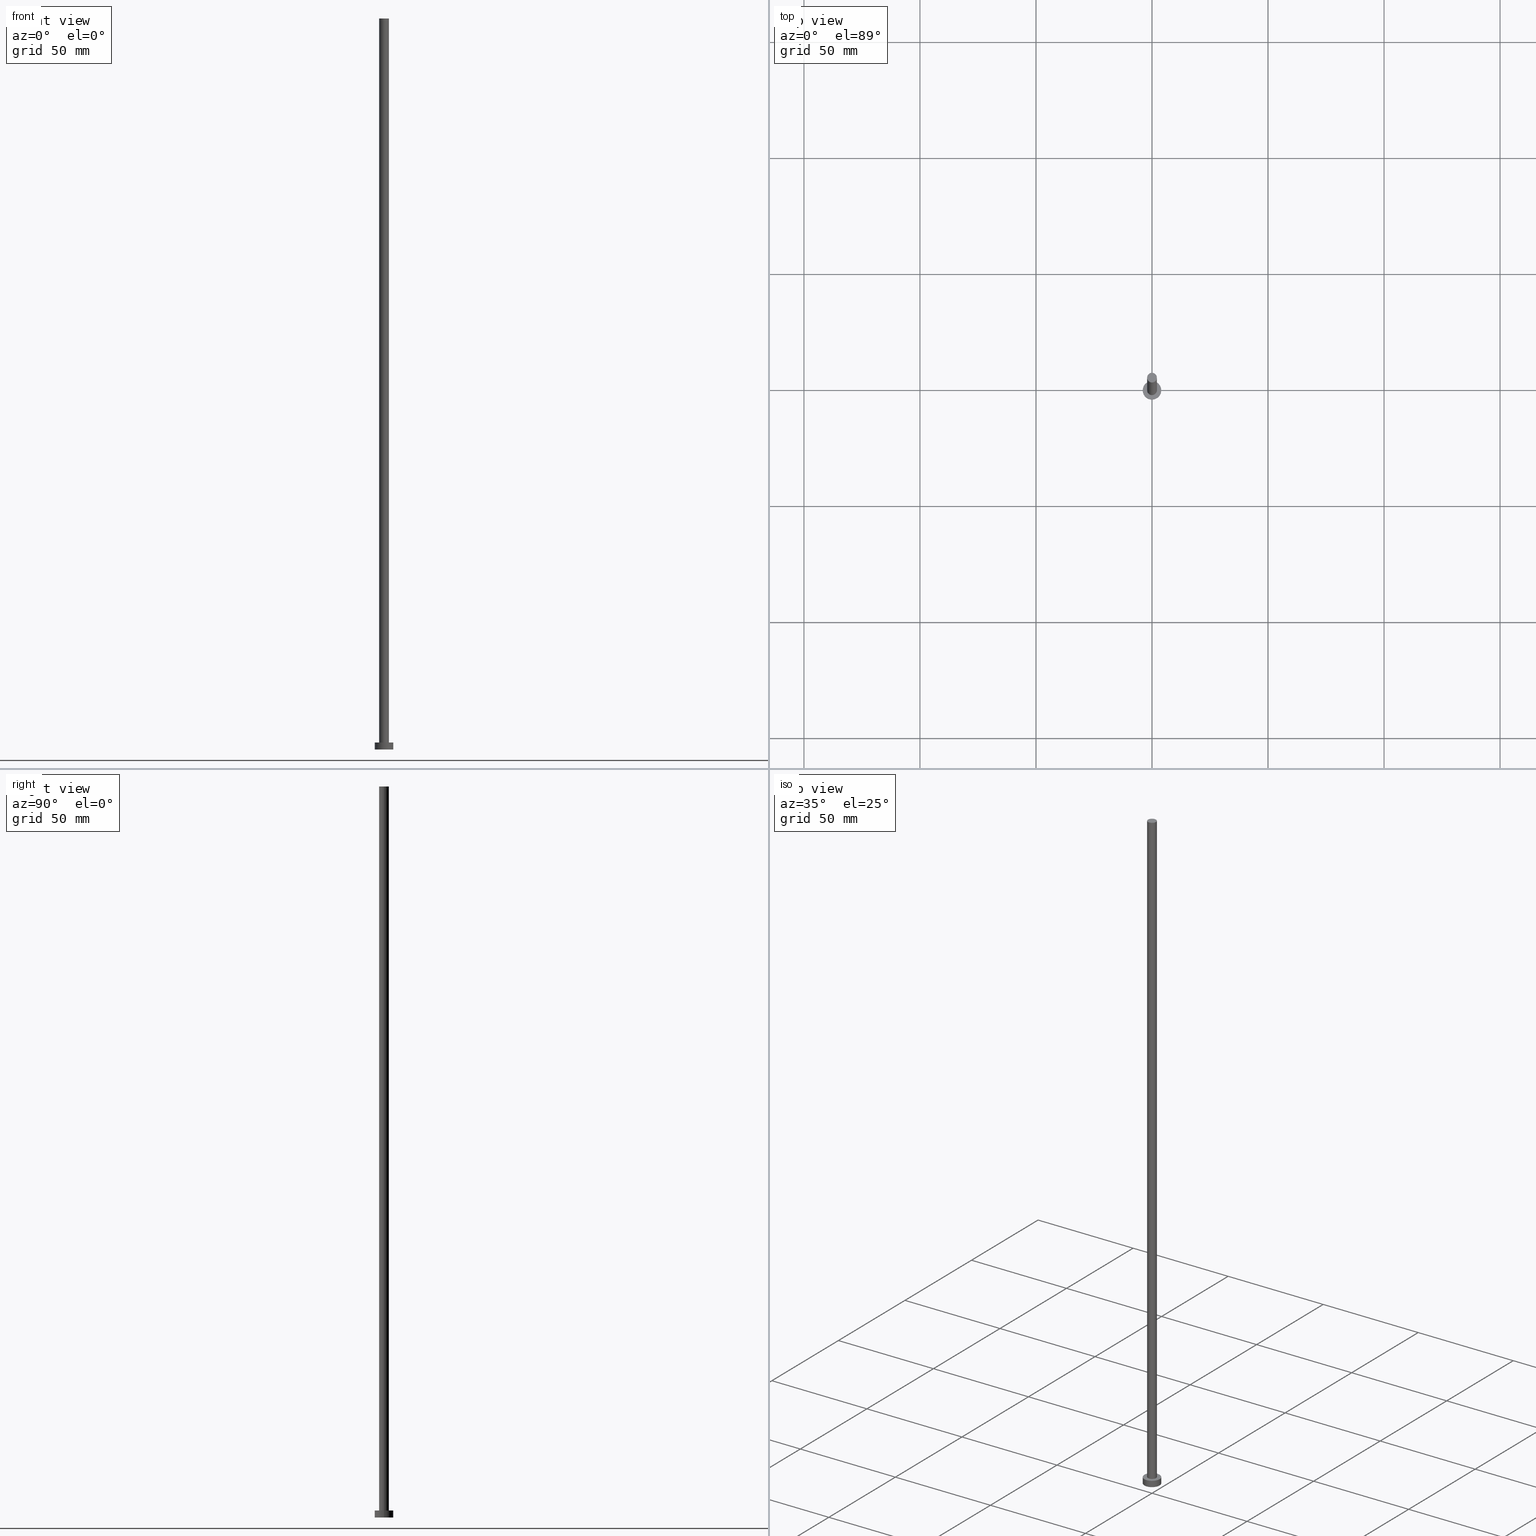
[diagram: canonical four-view strip — front | top / right | iso, engineering-drawing reading convention]
A machine part, canonical four-view strip (front | top / right | iso — engineering-drawing reading convention). The complete STEP part file that produces these views, byte-faithful:
ISO-10303-21;
HEADER;
FILE_DESCRIPTION (( 'STEP AP203' ),
    '1' );
FILE_NAME ('b4a2.STEP',
    '2023-02-13T13:55:49',
    ( '' ),
    ( '' ),
    'SwSTEP 2.0',
    'SolidWorks 2019',
    '' );
FILE_SCHEMA (( 'CONFIG_CONTROL_DESIGN' ));
ENDSEC;

DATA;
#1 = ORIENTED_EDGE ( 'NONE', *, *, #47, .T. ) ;
#2 = APPROVAL_STATUS ( 'not_yet_approved' ) ;
#3 = CARTESIAN_POINT ( 'NONE',  ( 4.000000000000000000, 4.898587196589412829E-16, 0.000000000000000000 ) ) ;
#4 = DIRECTION ( 'NONE',  ( -1.000000000000000000, 0.000000000000000000, 0.000000000000000000 ) ) ;
#5 = CC_DESIGN_APPROVAL ( #71, ( #108 ) ) ;
#6 = CARTESIAN_POINT ( 'NONE',  ( -4.000000000000000000, 0.000000000000000000, 0.000000000000000000 ) ) ;
#7 = CARTESIAN_POINT ( 'NONE',  ( 0.000000000000000000, 0.000000000000000000, 3.000000000000000000 ) ) ;
#8 = AXIS2_PLACEMENT_3D ( 'NONE', #136, #13, #94 ) ;
#9 = CARTESIAN_POINT ( 'NONE',  ( 0.000000000000000000, 0.000000000000000000, 3.000000000000000000 ) ) ;
#10 = AXIS2_PLACEMENT_3D ( 'NONE', #218, #33, #116 ) ;
#11 = EDGE_LOOP ( 'NONE', ( #242, #222, #217, #164 ) ) ;
#12 = PERSON_AND_ORGANIZATION ( #29, #41 ) ;
#13 = DIRECTION ( 'NONE',  ( 0.000000000000000000, 0.000000000000000000, 1.000000000000000000 ) ) ;
#14 = EDGE_CURVE ( 'NONE', #233, #93, #42, .T. ) ;
#15 = AXIS2_PLACEMENT_3D ( 'NONE', #102, #146, #43 ) ;
#16 = PERSON_AND_ORGANIZATION ( #29, #41 ) ;
#17 = EDGE_CURVE ( 'NONE', #249, #107, #36, .T. ) ;
#18 = LOCAL_TIME ( 14, 55, 49.00000000000000000, #243 ) ;
#19 = DATE_TIME_ROLE ( 'classification_date' ) ;
#20 = DIRECTION ( 'NONE',  ( 1.000000000000000000, 0.000000000000000000, 0.000000000000000000 ) ) ;
#21 = COORDINATED_UNIVERSAL_TIME_OFFSET ( 1, 0, .AHEAD. ) ;
#22 = ORIENTED_EDGE ( 'NONE', *, *, #81, .T. ) ;
#23 = APPROVAL ( #196, 'NEUR�EN�' ) ;
#24 = VECTOR ( 'NONE', #209, 1000.000000000000000 ) ;
#25 = DIRECTION ( 'NONE',  ( 1.000000000000000000, 0.000000000000000000, 0.000000000000000000 ) ) ;
#26 = EDGE_CURVE ( 'NONE', #86, #44, #180, .T. ) ;
#27 = APPROVAL_PERSON_ORGANIZATION ( #12, #71, #201 ) ;
#28 = CC_DESIGN_PERSON_AND_ORGANIZATION_ASSIGNMENT ( #82, #181, ( #110 ) ) ;
#29 = PERSON ( 'NEUR�EN�', 'NEUR�EN�', 'NEUR�EN�', ('NEUR�EN�'), ('NEUR�EN�'), ('NEUR�EN�') ) ;
#30 = AXIS2_PLACEMENT_3D ( 'NONE', #203, #99, #20 ) ;
#31 = AXIS2_PLACEMENT_3D ( 'NONE', #64, #68, #168 ) ;
#32 = PERSON_AND_ORGANIZATION ( #29, #41 ) ;
#33 = DIRECTION ( 'NONE',  ( -0.000000000000000000, -0.000000000000000000, -1.000000000000000000 ) ) ;
#34 = COORDINATED_UNIVERSAL_TIME_OFFSET ( 1, 0, .AHEAD. ) ;
#35 = DIRECTION ( 'NONE',  ( 1.000000000000000000, 0.000000000000000000, 0.000000000000000000 ) ) ;
#36 = CIRCLE ( 'NONE', #31, 4.000000000000000000 ) ;
#37 = CC_DESIGN_DATE_AND_TIME_ASSIGNMENT ( #56, #120, ( #108 ) ) ;
#38 = PERSON_AND_ORGANIZATION ( #29, #41 ) ;
#39 = ORIENTED_EDGE ( 'NONE', *, *, #114, .F. ) ;
#40 = ORIENTED_EDGE ( 'NONE', *, *, #156, .T. ) ;
#41 = ORGANIZATION ( 'NEUR�EN�', 'NEUR�EN�', '' ) ;
#42 = LINE ( 'NONE', #66, #45 ) ;
#43 = DIRECTION ( 'NONE',  ( 1.000000000000000000, 0.000000000000000000, 0.000000000000000000 ) ) ;
#44 = VERTEX_POINT ( 'NONE', #3 ) ;
#45 = VECTOR ( 'NONE', #69, 1000.000000000000000 ) ;
#46 = CARTESIAN_POINT ( 'NONE',  ( 0.000000000000000000, 0.000000000000000000, 3.000000000000000000 ) ) ;
#47 = EDGE_CURVE ( 'NONE', #107, #249, #206, .T. ) ;
#48 = CALENDAR_DATE ( 2023, 13, 2 ) ;
#49 = CARTESIAN_POINT ( 'NONE',  ( -2.100000000000000089, 0.000000000000000000, 3.000000000000000000 ) ) ;
#50 = APPLICATION_CONTEXT ( 'configuration controlled 3d designs of mechanical parts and assemblies' ) ;
#51 = DIRECTION ( 'NONE',  ( 0.000000000000000000, 0.000000000000000000, 1.000000000000000000 ) ) ;
#52 = CC_DESIGN_APPROVAL ( #23, ( #200 ) ) ;
#53 = LINE ( 'NONE', #73, #140 ) ;
#54 = CALENDAR_DATE ( 2023, 13, 2 ) ;
#55 = DIRECTION ( 'NONE',  ( -0.000000000000000000, -0.000000000000000000, -1.000000000000000000 ) ) ;
#56 = DATE_AND_TIME ( #54, #123 ) ;
#57 = AXIS2_PLACEMENT_3D ( 'NONE', #7, #171, #220 ) ;
#58 = ADVANCED_FACE ( 'NONE', ( #182 ), #244, .T. ) ;
#59 = DIRECTION ( 'NONE',  ( -0.000000000000000000, -0.000000000000000000, -1.000000000000000000 ) ) ;
#60 = APPROVAL_ROLE ( '' ) ;
#61 = DIRECTION ( 'NONE',  ( 0.000000000000000000, 0.000000000000000000, 1.000000000000000000 ) ) ;
#62 = ORIENTED_EDGE ( 'NONE', *, *, #246, .T. ) ;
#63 = CALENDAR_DATE ( 2023, 13, 2 ) ;
#64 = CARTESIAN_POINT ( 'NONE',  ( 0.000000000000000000, 0.000000000000000000, 3.000000000000000000 ) ) ;
#65 = APPROVAL_PERSON_ORGANIZATION ( #16, #23, #97 ) ;
#66 = CARTESIAN_POINT ( 'NONE',  ( -2.100000000000000089, 0.000000000000000000, 315.0000000000000000 ) ) ;
#67 = CC_DESIGN_PERSON_AND_ORGANIZATION_ASSIGNMENT ( #150, #96, ( #183 ) ) ;
#68 = DIRECTION ( 'NONE',  ( 0.000000000000000000, 0.000000000000000000, 1.000000000000000000 ) ) ;
#69 = DIRECTION ( 'NONE',  ( -0.000000000000000000, -0.000000000000000000, -1.000000000000000000 ) ) ;
#70 = AXIS2_PLACEMENT_3D ( 'NONE', #139, #234, #35 ) ;
#71 = APPROVAL ( #80, 'NEUR�EN�' ) ;
#72 = APPLICATION_CONTEXT ( 'configuration controlled 3d designs of mechanical parts and assemblies' ) ;
#73 = CARTESIAN_POINT ( 'NONE',  ( -4.000000000000000000, 0.000000000000000000, 3.000000000000000000 ) ) ;
#74 = FACE_BOUND ( 'NONE', #172, .T. ) ;
#75 = CALENDAR_DATE ( 2023, 13, 2 ) ;
#76 = CYLINDRICAL_SURFACE ( 'NONE', #129, 4.000000000000000000 ) ;
#77 = LOCAL_TIME ( 14, 55, 49.00000000000000000, #149 ) ;
#78 = CIRCLE ( 'NONE', #70, 4.000000000000000000 ) ;
#79 = CLOSED_SHELL ( 'NONE', ( #232, #212, #130, #186, #85, #58, #166 ) ) ;
#80 = APPROVAL_STATUS ( 'not_yet_approved' ) ;
#81 = EDGE_CURVE ( 'NONE', #121, #100, #84, .T. ) ;
#82 = PERSON_AND_ORGANIZATION ( #29, #41 ) ;
#83 = ORIENTED_EDGE ( 'NONE', *, *, #118, .F. ) ;
#84 = LINE ( 'NONE', #127, #24 ) ;
#85 = ADVANCED_FACE ( 'NONE', ( #106 ), #147, .F. ) ;
#86 = VERTEX_POINT ( 'NONE', #6 ) ;
#87 = EDGE_CURVE ( 'NONE', #107, #44, #111, .T. ) ;
#88 = CYLINDRICAL_SURFACE ( 'NONE', #57, 4.000000000000000000 ) ;
#89 = AXIS2_PLACEMENT_3D ( 'NONE', #191, #192, #90 ) ;
#90 = DIRECTION ( 'NONE',  ( 1.000000000000000000, 0.000000000000000000, 0.000000000000000000 ) ) ;
#91 = CC_DESIGN_SECURITY_CLASSIFICATION ( #110, ( #200 ) ) ;
#92 = ORIENTED_EDGE ( 'NONE', *, *, #26, .F. ) ;
#93 = VERTEX_POINT ( 'NONE', #49 ) ;
#94 = DIRECTION ( 'NONE',  ( 1.000000000000000000, 0.000000000000000000, -0.000000000000000000 ) ) ;
#95 = LOCAL_TIME ( 14, 55, 49.00000000000000000, #155 ) ;
#96 = PERSON_AND_ORGANIZATION_ROLE ( 'design_owner' ) ;
#97 = APPROVAL_ROLE ( '' ) ;
#98 =( LENGTH_UNIT ( ) NAMED_UNIT ( * ) SI_UNIT ( .MILLI., .METRE. ) );
#99 = DIRECTION ( 'NONE',  ( 0.000000000000000000, 0.000000000000000000, 1.000000000000000000 ) ) ;
#100 = VERTEX_POINT ( 'NONE', #211 ) ;
#101 = FACE_OUTER_BOUND ( 'NONE', #115, .T. ) ;
#102 = CARTESIAN_POINT ( 'NONE',  ( 0.000000000000000000, 0.000000000000000000, 3.000000000000000000 ) ) ;
#103 = CIRCLE ( 'NONE', #135, 2.100000000000000089 ) ;
#104 = PERSON_AND_ORGANIZATION ( #29, #41 ) ;
#105 = DIRECTION ( 'NONE',  ( -0.000000000000000000, -0.000000000000000000, -1.000000000000000000 ) ) ;
#106 = FACE_OUTER_BOUND ( 'NONE', #226, .T. ) ;
#107 = VERTEX_POINT ( 'NONE', #113 ) ;
#108 = PRODUCT_DEFINITION ( 'NEZN�M�', '', #200, #165 ) ;
#109 = CARTESIAN_POINT ( 'NONE',  ( 2.100000000000000089, 2.571758278209441957E-16, 315.0000000000000000 ) ) ;
#110 = SECURITY_CLASSIFICATION ( '', '', #184 ) ;
#111 = LINE ( 'NONE', #169, #167 ) ;
#112 = CIRCLE ( 'NONE', #30, 2.100000000000000089 ) ;
#113 = CARTESIAN_POINT ( 'NONE',  ( 4.000000000000000000, 4.898587196589412829E-16, 3.000000000000000000 ) ) ;
#114 = EDGE_CURVE ( 'NONE', #233, #121, #214, .T. ) ;
#115 = EDGE_LOOP ( 'NONE', ( #245, #40 ) ) ;
#116 = DIRECTION ( 'NONE',  ( -1.000000000000000000, 0.000000000000000000, 0.000000000000000000 ) ) ;
#117 = CARTESIAN_POINT ( 'NONE',  ( 0.000000000000000000, 0.000000000000000000, 0.000000000000000000 ) ) ;
#118 = EDGE_CURVE ( 'NONE', #93, #100, #103, .T. ) ;
#119 = LOCAL_TIME ( 14, 55, 49.00000000000000000, #21 ) ;
#120 = DATE_TIME_ROLE ( 'creation_date' ) ;
#121 = VERTEX_POINT ( 'NONE', #109 ) ;
#122 = ORIENTED_EDGE ( 'NONE', *, *, #26, .T. ) ;
#123 = LOCAL_TIME ( 14, 55, 49.00000000000000000, #34 ) ;
#124 =( GEOMETRIC_REPRESENTATION_CONTEXT ( 3 ) GLOBAL_UNCERTAINTY_ASSIGNED_CONTEXT ( ( #224 ) ) GLOBAL_UNIT_ASSIGNED_CONTEXT ( ( #98, #239, #255 ) ) REPRESENTATION_CONTEXT ( 'NONE', 'WORKASPACE' ) );
#125 = PERSON_AND_ORGANIZATION_ROLE ( 'creator' ) ;
#126 = CARTESIAN_POINT ( 'NONE',  ( 0.000000000000000000, 0.000000000000000000, 315.0000000000000000 ) ) ;
#127 = CARTESIAN_POINT ( 'NONE',  ( 2.100000000000000089, 2.571758278209441957E-16, 315.0000000000000000 ) ) ;
#128 = CARTESIAN_POINT ( 'NONE',  ( 0.000000000000000000, 0.000000000000000000, 0.000000000000000000 ) ) ;
#129 = AXIS2_PLACEMENT_3D ( 'NONE', #9, #55, #250 ) ;
#130 = ADVANCED_FACE ( 'NONE', ( #188 ), #88, .T. ) ;
#131 = AXIS2_PLACEMENT_3D ( 'NONE', #128, #210, #187 ) ;
#132 = FACE_OUTER_BOUND ( 'NONE', #174, .T. ) ;
#133 = CC_DESIGN_PERSON_AND_ORGANIZATION_ASSIGNMENT ( #178, #125, ( #200 ) ) ;
#134 = CARTESIAN_POINT ( 'NONE',  ( 0.000000000000000000, 0.000000000000000000, 3.000000000000000000 ) ) ;
#135 = AXIS2_PLACEMENT_3D ( 'NONE', #46, #51, #25 ) ;
#136 = CARTESIAN_POINT ( 'NONE',  ( 0.000000000000000000, 0.000000000000000000, 315.0000000000000000 ) ) ;
#137 = APPROVAL_DATE_TIME ( #215, #71 ) ;
#138 = CARTESIAN_POINT ( 'NONE',  ( -4.000000000000000000, 0.000000000000000000, 3.000000000000000000 ) ) ;
#139 = CARTESIAN_POINT ( 'NONE',  ( 0.000000000000000000, 0.000000000000000000, 0.000000000000000000 ) ) ;
#140 = VECTOR ( 'NONE', #59, 1000.000000000000000 ) ;
#141 = DIRECTION ( 'NONE',  ( 1.000000000000000000, 0.000000000000000000, 0.000000000000000000 ) ) ;
#142 = ADVANCED_BREP_SHAPE_REPRESENTATION ( 'b4a2', ( #227, #190 ), #124 ) ;
#143 = DATE_AND_TIME ( #63, #18 ) ;
#144 = EDGE_LOOP ( 'NONE', ( #247, #39, #228, #161 ) ) ;
#145 = SHAPE_DEFINITION_REPRESENTATION ( #198, #142 ) ;
#146 = DIRECTION ( 'NONE',  ( 0.000000000000000000, 0.000000000000000000, 1.000000000000000000 ) ) ;
#147 = PLANE ( 'NONE',  #131 ) ;
#148 = ORIENTED_EDGE ( 'NONE', *, *, #246, .F. ) ;
#149 = COORDINATED_UNIVERSAL_TIME_OFFSET ( 1, 0, .AHEAD. ) ;
#150 = PERSON_AND_ORGANIZATION ( #29, #41 ) ;
#151 = ORIENTED_EDGE ( 'NONE', *, *, #208, .F. ) ;
#152 = DIRECTION ( 'NONE',  ( 1.000000000000000000, 0.000000000000000000, -0.000000000000000000 ) ) ;
#153 = ORIENTED_EDGE ( 'NONE', *, *, #14, .F. ) ;
#154 = DIRECTION ( 'NONE',  ( 0.000000000000000000, 0.000000000000000000, 1.000000000000000000 ) ) ;
#155 = COORDINATED_UNIVERSAL_TIME_OFFSET ( 1, 0, .AHEAD. ) ;
#156 = EDGE_CURVE ( 'NONE', #121, #233, #112, .T. ) ;
#157 = MECHANICAL_CONTEXT ( 'NONE', #50, 'mechanical' ) ;
#158 = FACE_OUTER_BOUND ( 'NONE', #205, .T. ) ;
#159 = DIRECTION ( 'NONE',  ( 1.000000000000000000, 0.000000000000000000, 0.000000000000000000 ) ) ;
#160 = CALENDAR_DATE ( 2023, 13, 2 ) ;
#161 = ORIENTED_EDGE ( 'NONE', *, *, #118, .T. ) ;
#162 = ORIENTED_EDGE ( 'NONE', *, *, #156, .F. ) ;
#163 = PLANE ( 'NONE',  #8 ) ;
#164 = ORIENTED_EDGE ( 'NONE', *, *, #229, .F. ) ;
#165 = DESIGN_CONTEXT ( 'detailed design', #72, 'design' ) ;
#166 = ADVANCED_FACE ( 'NONE', ( #101 ), #163, .T. ) ;
#167 = VECTOR ( 'NONE', #230, 1000.000000000000000 ) ;
#168 = DIRECTION ( 'NONE',  ( 1.000000000000000000, 0.000000000000000000, 0.000000000000000000 ) ) ;
#169 = CARTESIAN_POINT ( 'NONE',  ( 4.000000000000000000, 4.898587196589412829E-16, 3.000000000000000000 ) ) ;
#170 = CIRCLE ( 'NONE', #195, 2.100000000000000089 ) ;
#171 = DIRECTION ( 'NONE',  ( -0.000000000000000000, -0.000000000000000000, -1.000000000000000000 ) ) ;
#172 = EDGE_LOOP ( 'NONE', ( #83, #148 ) ) ;
#173 = AXIS2_PLACEMENT_3D ( 'NONE', #126, #105, #4 ) ;
#174 = EDGE_LOOP ( 'NONE', ( #162, #22, #62, #153 ) ) ;
#175 = PLANE ( 'NONE',  #237 ) ;
#176 = APPLICATION_PROTOCOL_DEFINITION ( 'international standard', 'config_control_design', 1994, #72 ) ;
#177 = CC_DESIGN_PERSON_AND_ORGANIZATION_ASSIGNMENT ( #32, #235, ( #108 ) ) ;
#178 = PERSON_AND_ORGANIZATION ( #29, #41 ) ;
#179 = EDGE_LOOP ( 'NONE', ( #185, #251, #225, #122 ) ) ;
#180 = CIRCLE ( 'NONE', #238, 4.000000000000000000 ) ;
#181 = PERSON_AND_ORGANIZATION_ROLE ( 'classification_officer' ) ;
#182 = FACE_OUTER_BOUND ( 'NONE', #144, .T. ) ;
#183 = PRODUCT ( 'b4a2', 'b4a2', '', ( #157 ) ) ;
#184 = SECURITY_CLASSIFICATION_LEVEL ( 'unclassified' ) ;
#185 = ORIENTED_EDGE ( 'NONE', *, *, #87, .F. ) ;
#186 = ADVANCED_FACE ( 'NONE', ( #74, #158 ), #175, .T. ) ;
#187 = DIRECTION ( 'NONE',  ( 1.000000000000000000, 0.000000000000000000, -0.000000000000000000 ) ) ;
#188 = FACE_OUTER_BOUND ( 'NONE', #179, .T. ) ;
#189 = DATE_AND_TIME ( #48, #77 ) ;
#190 = AXIS2_PLACEMENT_3D ( 'NONE', #117, #199, #159 ) ;
#191 = CARTESIAN_POINT ( 'NONE',  ( 0.000000000000000000, 0.000000000000000000, 315.0000000000000000 ) ) ;
#192 = DIRECTION ( 'NONE',  ( 0.000000000000000000, 0.000000000000000000, 1.000000000000000000 ) ) ;
#193 = PRODUCT_RELATED_PRODUCT_CATEGORY ( 'detail', '', ( #183 ) ) ;
#194 = FACE_OUTER_BOUND ( 'NONE', #11, .T. ) ;
#195 = AXIS2_PLACEMENT_3D ( 'NONE', #219, #254, #141 ) ;
#196 = APPROVAL_STATUS ( 'not_yet_approved' ) ;
#197 = CARTESIAN_POINT ( 'NONE',  ( -2.100000000000000089, 0.000000000000000000, 315.0000000000000000 ) ) ;
#198 = PRODUCT_DEFINITION_SHAPE ( 'NONE', 'NONE',  #108 ) ;
#199 = DIRECTION ( 'NONE',  ( 0.000000000000000000, 0.000000000000000000, 1.000000000000000000 ) ) ;
#200 = PRODUCT_DEFINITION_FORMATION_WITH_SPECIFIED_SOURCE ( 'LIBOVOLN�', '', #183, .NOT_KNOWN. ) ;
#201 = APPROVAL_ROLE ( '' ) ;
#202 = APPLICATION_PROTOCOL_DEFINITION ( 'international standard', 'config_control_design', 1994, #50 ) ;
#203 = CARTESIAN_POINT ( 'NONE',  ( 0.000000000000000000, 0.000000000000000000, 315.0000000000000000 ) ) ;
#204 = PERSON_AND_ORGANIZATION_ROLE ( 'design_supplier' ) ;
#205 = EDGE_LOOP ( 'NONE', ( #223, #1 ) ) ;
#206 = CIRCLE ( 'NONE', #15, 4.000000000000000000 ) ;
#207 = DIRECTION ( 'NONE',  ( 1.000000000000000000, 0.000000000000000000, 0.000000000000000000 ) ) ;
#208 = EDGE_CURVE ( 'NONE', #44, #86, #78, .T. ) ;
#209 = DIRECTION ( 'NONE',  ( -0.000000000000000000, -0.000000000000000000, -1.000000000000000000 ) ) ;
#210 = DIRECTION ( 'NONE',  ( 0.000000000000000000, 0.000000000000000000, 1.000000000000000000 ) ) ;
#211 = CARTESIAN_POINT ( 'NONE',  ( 2.100000000000000089, 2.571758278209441957E-16, 3.000000000000000000 ) ) ;
#212 = ADVANCED_FACE ( 'NONE', ( #194 ), #76, .T. ) ;
#213 = CYLINDRICAL_SURFACE ( 'NONE', #10, 2.100000000000000089 ) ;
#214 = CIRCLE ( 'NONE', #89, 2.100000000000000089 ) ;
#215 = DATE_AND_TIME ( #75, #95 ) ;
#216 = APPROVAL ( #2, 'NEUR�EN�' ) ;
#217 = ORIENTED_EDGE ( 'NONE', *, *, #208, .T. ) ;
#218 = CARTESIAN_POINT ( 'NONE',  ( 0.000000000000000000, 0.000000000000000000, 315.0000000000000000 ) ) ;
#219 = CARTESIAN_POINT ( 'NONE',  ( 0.000000000000000000, 0.000000000000000000, 3.000000000000000000 ) ) ;
#220 = DIRECTION ( 'NONE',  ( -1.000000000000000000, 0.000000000000000000, 0.000000000000000000 ) ) ;
#221 = APPROVAL_DATE_TIME ( #143, #216 ) ;
#222 = ORIENTED_EDGE ( 'NONE', *, *, #87, .T. ) ;
#223 = ORIENTED_EDGE ( 'NONE', *, *, #17, .T. ) ;
#224 = UNCERTAINTY_MEASURE_WITH_UNIT (LENGTH_MEASURE( 1.000000000000000082E-05 ), #98, 'distance_accuracy_value', 'NONE');
#225 = ORIENTED_EDGE ( 'NONE', *, *, #229, .T. ) ;
#226 = EDGE_LOOP ( 'NONE', ( #92, #151 ) ) ;
#227 = MANIFOLD_SOLID_BREP ( 'P�idat vysunut�m3', #79 ) ;
#228 = ORIENTED_EDGE ( 'NONE', *, *, #14, .T. ) ;
#229 = EDGE_CURVE ( 'NONE', #249, #86, #53, .T. ) ;
#230 = DIRECTION ( 'NONE',  ( -0.000000000000000000, -0.000000000000000000, -1.000000000000000000 ) ) ;
#231 = CC_DESIGN_APPROVAL ( #216, ( #110 ) ) ;
#232 = ADVANCED_FACE ( 'NONE', ( #132 ), #213, .T. ) ;
#233 = VERTEX_POINT ( 'NONE', #197 ) ;
#234 = DIRECTION ( 'NONE',  ( 0.000000000000000000, 0.000000000000000000, 1.000000000000000000 ) ) ;
#235 = PERSON_AND_ORGANIZATION_ROLE ( 'creator' ) ;
#236 = CC_DESIGN_DATE_AND_TIME_ASSIGNMENT ( #240, #19, ( #110 ) ) ;
#237 = AXIS2_PLACEMENT_3D ( 'NONE', #134, #154, #152 ) ;
#238 = AXIS2_PLACEMENT_3D ( 'NONE', #241, #61, #207 ) ;
#239 =( NAMED_UNIT ( * ) PLANE_ANGLE_UNIT ( ) SI_UNIT ( $, .RADIAN. ) );
#240 = DATE_AND_TIME ( #160, #119 ) ;
#241 = CARTESIAN_POINT ( 'NONE',  ( 0.000000000000000000, 0.000000000000000000, 0.000000000000000000 ) ) ;
#242 = ORIENTED_EDGE ( 'NONE', *, *, #47, .F. ) ;
#243 = COORDINATED_UNIVERSAL_TIME_OFFSET ( 1, 0, .AHEAD. ) ;
#244 = CYLINDRICAL_SURFACE ( 'NONE', #173, 2.100000000000000089 ) ;
#245 = ORIENTED_EDGE ( 'NONE', *, *, #114, .T. ) ;
#246 = EDGE_CURVE ( 'NONE', #100, #93, #170, .T. ) ;
#247 = ORIENTED_EDGE ( 'NONE', *, *, #81, .F. ) ;
#248 = APPROVAL_DATE_TIME ( #189, #23 ) ;
#249 = VERTEX_POINT ( 'NONE', #138 ) ;
#250 = DIRECTION ( 'NONE',  ( -1.000000000000000000, 0.000000000000000000, 0.000000000000000000 ) ) ;
#251 = ORIENTED_EDGE ( 'NONE', *, *, #17, .F. ) ;
#252 = CC_DESIGN_PERSON_AND_ORGANIZATION_ASSIGNMENT ( #104, #204, ( #200 ) ) ;
#253 = APPROVAL_PERSON_ORGANIZATION ( #38, #216, #60 ) ;
#254 = DIRECTION ( 'NONE',  ( 0.000000000000000000, 0.000000000000000000, 1.000000000000000000 ) ) ;
#255 =( NAMED_UNIT ( * ) SI_UNIT ( $, .STERADIAN. ) SOLID_ANGLE_UNIT ( ) );
ENDSEC;
END-ISO-10303-21;
